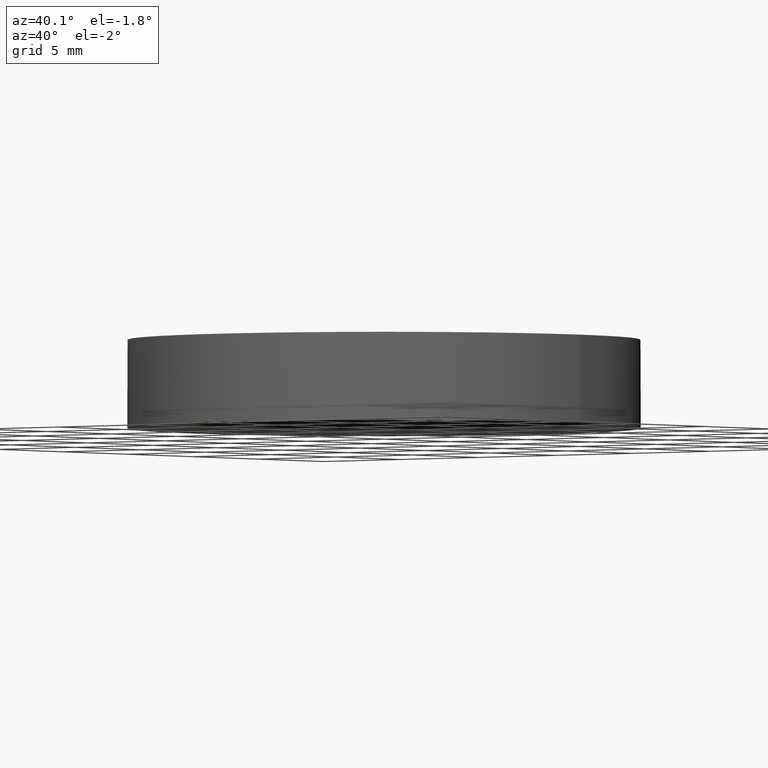
[diagram: clean part render]
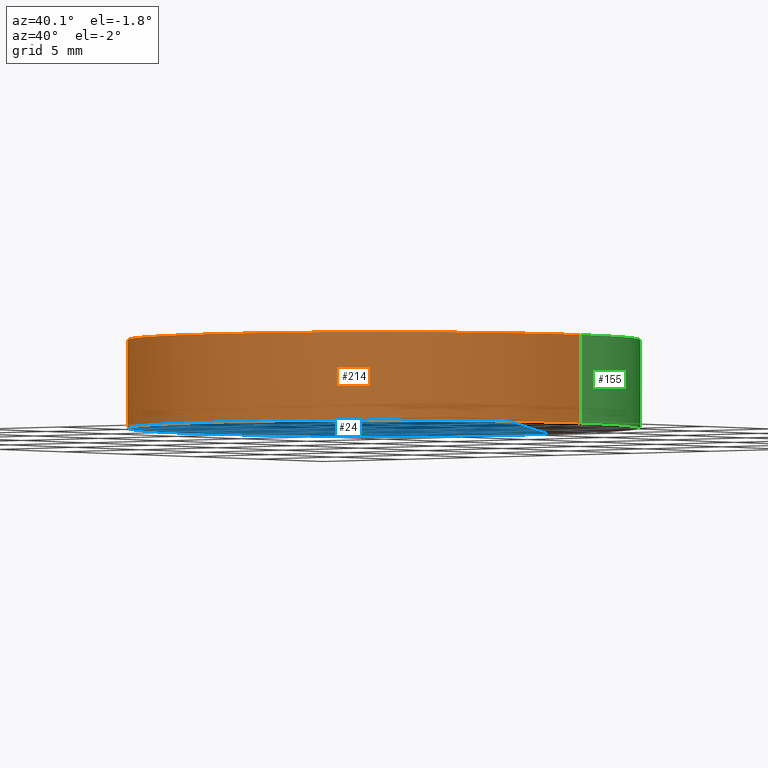
[diagram: same view with three faces highlighted in distinct colors, each labeled with its STEP entity id]
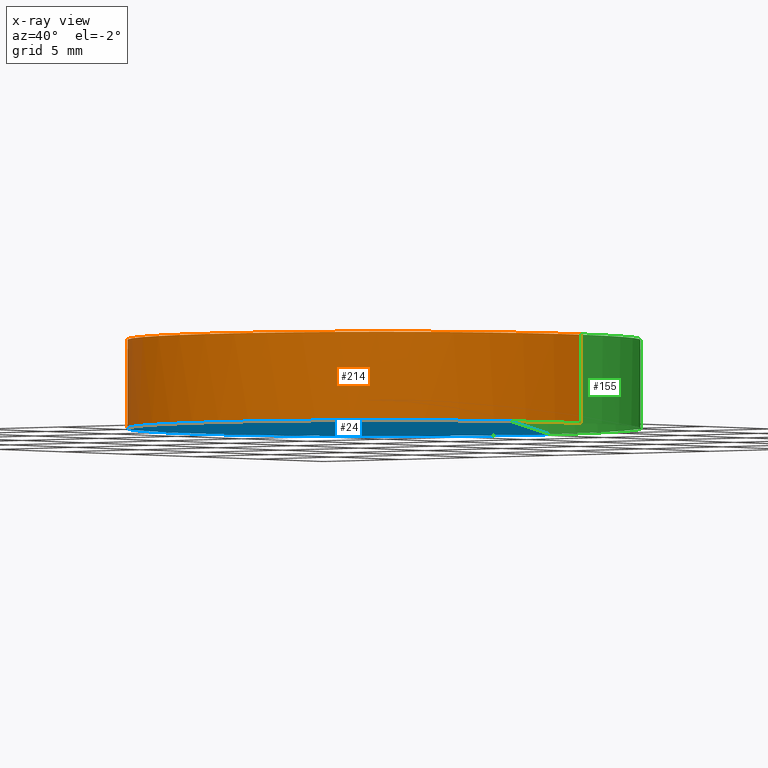
[diagram: x-ray of the same camera — body ghosted, the three highlighted faces saturated]
A machine part, auxiliary view with three faces highlighted in distinct colors.
The next image is the same camera in x-ray (body ghosted, the three faces saturated) — at least one of them is partly hidden behind the body in this view.
Their STEP definitions:

[orange] entity #214 — the highlighted cylindrical surface (partial cylindrical patch) has radius 12.7 mm, axis along (0, 0, 1).
#1 = VECTOR ( 'NONE', #193, 1000.000000000000000 ) ;
#5 = CARTESIAN_POINT ( 'NONE',  ( -12.69999999999999900, 3.997792089092478900E-015, -1.370941700092870100 ) ) ;
#8 = CARTESIAN_POINT ( 'NONE',  ( 12.69999999999999900, 2.442490654175340100E-015, -1.370941700092870100 ) ) ;
#14 = DIRECTION ( 'NONE',  ( 0.0000000000000000000, 0.0000000000000000000, 1.000000000000000000 ) ) ;
#16 = LINE ( 'NONE', #8, #1 ) ;
#20 = CIRCLE ( 'NONE', #135, 12.69999999999999900 ) ;
#26 = DIRECTION ( 'NONE',  ( 1.000000000000000000, 0.0000000000000000000, 0.0000000000000000000 ) ) ;
#33 = CARTESIAN_POINT ( 'NONE',  ( 12.69999999999999900, 2.442490654175340100E-015, -1.370941700092870100 ) ) ;
#46 = DIRECTION ( 'NONE',  ( -0.0000000000000000000, -0.0000000000000000000, -1.000000000000000000 ) ) ;
#54 = EDGE_LOOP ( 'NONE', ( #126, #218, #80, #228, #107 ) ) ;
#74 = VERTEX_POINT ( 'NONE', #5 ) ;
#77 = AXIS2_PLACEMENT_3D ( 'NONE', #216, #229, #146 ) ;
#80 = ORIENTED_EDGE ( 'NONE', *, *, #109, .T. ) ;
#84 = DIRECTION ( 'NONE',  ( 0.0000000000000000000, 0.0000000000000000000, 1.000000000000000000 ) ) ;
#96 = EDGE_CURVE ( 'NONE', #74, #130, #234, .T. ) ;
#105 = CARTESIAN_POINT ( 'NONE',  ( -12.69999999999999900, 3.997792089092478900E-015, 3.000000000000000400 ) ) ;
#107 = ORIENTED_EDGE ( 'NONE', *, *, #123, .T. ) ;
#109 = EDGE_CURVE ( 'NONE', #220, #171, #20, .T. ) ;
#113 = VERTEX_POINT ( 'NONE', #121 ) ;
#116 = CIRCLE ( 'NONE', #169, 12.69999999999999900 ) ;
#121 = CARTESIAN_POINT ( 'NONE',  ( 12.69999999999999900, 2.442490654175340100E-015, 3.000000000000000400 ) ) ;
#123 = EDGE_CURVE ( 'NONE', #113, #130, #116, .T. ) ;
#126 = ORIENTED_EDGE ( 'NONE', *, *, #96, .F. ) ;
#128 = EDGE_CURVE ( 'NONE', #171, #113, #16, .T. ) ;
#130 = VERTEX_POINT ( 'NONE', #105 ) ;
#135 = AXIS2_PLACEMENT_3D ( 'NONE', #136, #84, #26 ) ;
#136 = CARTESIAN_POINT ( 'NONE',  ( 4.996003610813200500E-016, 2.442490654175340100E-015, -1.370941700092870100 ) ) ;
#139 = CARTESIAN_POINT ( 'NONE',  ( 4.996003610813200500E-016, 2.442490654175340100E-015, 3.000000000000000400 ) ) ;
#142 = CYLINDRICAL_SURFACE ( 'NONE', #77, 12.69999999999999900 ) ;
#146 = DIRECTION ( 'NONE',  ( 1.000000000000000000, 0.0000000000000000000, 0.0000000000000000000 ) ) ;
#147 = EDGE_CURVE ( 'NONE', #74, #220, #149, .T. ) ;
#149 = CIRCLE ( 'NONE', #150, 12.69999999999999900 ) ;
#150 = AXIS2_PLACEMENT_3D ( 'NONE', #164, #14, #163 ) ;
#154 = CARTESIAN_POINT ( 'NONE',  ( -12.69999999999999900, 3.997792089092478900E-015, -1.370941700092870100 ) ) ;
#163 = DIRECTION ( 'NONE',  ( 1.000000000000000000, 0.0000000000000000000, 0.0000000000000000000 ) ) ;
#164 = CARTESIAN_POINT ( 'NONE',  ( 4.996003610813200500E-016, 2.442490654175340100E-015, -1.370941700092870100 ) ) ;
#169 = AXIS2_PLACEMENT_3D ( 'NONE', #139, #46, #213 ) ;
#171 = VERTEX_POINT ( 'NONE', #33 ) ;
#172 = DIRECTION ( 'NONE',  ( 0.0000000000000000000, 0.0000000000000000000, 1.000000000000000000 ) ) ;
#175 = CARTESIAN_POINT ( 'NONE',  ( -1.421085471520199700E-014, -12.69999999999999900, -1.370941700092875000 ) ) ;
#193 = DIRECTION ( 'NONE',  ( 0.0000000000000000000, 0.0000000000000000000, 1.000000000000000000 ) ) ;
#213 = DIRECTION ( 'NONE',  ( 1.000000000000000000, 0.0000000000000000000, 0.0000000000000000000 ) ) ;
#214 = ADVANCED_FACE ( 'NONE', ( #233 ), #142, .T. ) ;
#216 = CARTESIAN_POINT ( 'NONE',  ( 4.996003610813200500E-016, 2.442490654175340100E-015, -1.370941700092870100 ) ) ;
#218 = ORIENTED_EDGE ( 'NONE', *, *, #147, .T. ) ;
#220 = VERTEX_POINT ( 'NONE', #175 ) ;
#223 = VECTOR ( 'NONE', #172, 1000.000000000000000 ) ;
#228 = ORIENTED_EDGE ( 'NONE', *, *, #128, .T. ) ;
#229 = DIRECTION ( 'NONE',  ( 0.0000000000000000000, 0.0000000000000000000, 1.000000000000000000 ) ) ;
#233 = FACE_OUTER_BOUND ( 'NONE', #54, .T. ) ;
#234 = LINE ( 'NONE', #154, #223 ) ;

[blue] entity #24 — the highlighted face is a freeform B-spline surface patch.
#5 = CARTESIAN_POINT ( 'NONE',  ( -12.69999999999999900, 3.997792089092478900E-015, -1.370941700092870100 ) ) ;
#13 = CIRCLE ( 'NONE', #231, 12.69999999999999900 ) ;
#14 = DIRECTION ( 'NONE',  ( 0.0000000000000000000, 0.0000000000000000000, 1.000000000000000000 ) ) ;
#18 = ORIENTED_EDGE ( 'NONE', *, *, #21, .F. ) ;
#21 = EDGE_CURVE ( 'NONE', #168, #74, #13, .T. ) ;
#24 = ADVANCED_FACE ( 'NONE', ( #167 ), #207, .F. ) ;
#25 = CARTESIAN_POINT ( 'NONE',  ( -1.421085471520200100E-014, 3.552713678800500100E-015, -59.50999999999999800 ) ) ;
#27 = CARTESIAN_POINT ( 'NONE',  ( -8.643638908625003800, -4.351775892739209600, 0.007470142450254155900 ) ) ;
#29 = EDGE_CURVE ( 'NONE', #168, #220, #202, .T. ) ;
#35 = AXIS2_PLACEMENT_3D ( 'NONE', #25, #161, #210 ) ;
#42 = CARTESIAN_POINT ( 'NONE',  ( -8.372831571571831300, -12.85000064494567900, -1.857226863961664000 ) ) ;
#43 = CARTESIAN_POINT ( 'NONE',  ( -8.643638908625003800, 4.351775892739211400, 0.007470142450260661100 ) ) ;
#44 = CARTESIAN_POINT ( 'NONE',  ( -2.428612866367529900E-014, -12.85000064494567900, -1.403910960856293900 ) ) ;
#57 = DIRECTION ( 'NONE',  ( 0.0000000000000000000, 0.0000000000000000000, 1.000000000000000000 ) ) ;
#59 = CARTESIAN_POINT ( 'NONE',  ( -12.47363340973639200, 12.85000064494568200, -2.758559022837086900 ) ) ;
#61 = CARTESIAN_POINT ( 'NONE',  ( -4.334487914191719900, 4.351775892739212300, 0.4754479041532194100 ) ) ;
#64 = CARTESIAN_POINT ( 'NONE',  ( -12.47363340973639000, -12.85000064494567900, -2.758559022837094000 ) ) ;
#74 = VERTEX_POINT ( 'NONE', #5 ) ;
#75 = CARTESIAN_POINT ( 'NONE',  ( -8.372831571571831300, 12.85000064494568200, -1.857226863961656700 ) ) ;
#81 = CARTESIAN_POINT ( 'NONE',  ( -12.87707535386163800, -4.351775892739208700, -0.9230143240595714000 ) ) ;
#97 = DIRECTION ( 'NONE',  ( 1.000000000000000000, 0.0000000000000000000, 0.0000000000000000000 ) ) ;
#102 = CARTESIAN_POINT ( 'NONE',  ( -12.87707535386163800, 4.351775892739210500, -0.9230143240595649600 ) ) ;
#111 = CARTESIAN_POINT ( 'NONE',  ( -1.421085471520199700E-014, 12.70000000000000600, -1.370941700092875000 ) ) ;
#118 = CARTESIAN_POINT ( 'NONE',  ( -4.198687339695238700, 12.85000064494568200, -1.403910960856287200 ) ) ;
#122 = CARTESIAN_POINT ( 'NONE',  ( -2.428612866367529600E-014, 4.351775892739211400, 0.4754479041532200800 ) ) ;
#137 = CARTESIAN_POINT ( 'NONE',  ( -4.334487914191719000, -4.351775892739208700, 0.4754479041532131400 ) ) ;
#147 = EDGE_CURVE ( 'NONE', #74, #220, #149, .T. ) ;
#149 = CIRCLE ( 'NONE', #150, 12.69999999999999900 ) ;
#150 = AXIS2_PLACEMENT_3D ( 'NONE', #164, #14, #163 ) ;
#151 = CARTESIAN_POINT ( 'NONE',  ( 4.996003610813200500E-016, 2.442490654175340100E-015, -1.370941700092870100 ) ) ;
#158 = CARTESIAN_POINT ( 'NONE',  ( -4.198687339695237800, -12.85000064494567900, -1.403910960856294500 ) ) ;
#160 = ORIENTED_EDGE ( 'NONE', *, *, #147, .F. ) ;
#161 = DIRECTION ( 'NONE',  ( 1.000000000000000000, 0.0000000000000000000, 0.0000000000000000000 ) ) ;
#163 = DIRECTION ( 'NONE',  ( 1.000000000000000000, 0.0000000000000000000, 0.0000000000000000000 ) ) ;
#164 = CARTESIAN_POINT ( 'NONE',  ( 4.996003610813200500E-016, 2.442490654175340100E-015, -1.370941700092870100 ) ) ;
#167 = FACE_OUTER_BOUND ( 'NONE', #212, .T. ) ;
#168 = VERTEX_POINT ( 'NONE', #111 ) ;
#175 = CARTESIAN_POINT ( 'NONE',  ( -1.421085471520199700E-014, -12.69999999999999900, -1.370941700092875000 ) ) ;
#185 = CARTESIAN_POINT ( 'NONE',  ( -2.428612866367529900E-014, 12.85000064494568200, -1.403910960856286500 ) ) ;
#187 = ORIENTED_EDGE ( 'NONE', *, *, #29, .T. ) ;
#191 = CARTESIAN_POINT ( 'NONE',  ( -2.428612866367529600E-014, -4.351775892739207800, 0.4754479041532137500 ) ) ;
#202 = CIRCLE ( 'NONE', #35, 59.50999999999999800 ) ;
#207 =( BOUNDED_SURFACE ( )  B_SPLINE_SURFACE ( 3, 3, ( 
 ( #59, #75, #118, #185 ),
 ( #102, #43, #61, #122 ),
 ( #81, #27, #137, #191 ),
 ( #64, #42, #158, #44 ) ),
 .UNSPECIFIED., .F., .F., .F. ) 
 B_SPLINE_SURFACE_WITH_KNOTS ( ( 4, 4 ),
 ( 4, 4 ),
 ( 0.0000000000000000000, 1.000000000000000000 ),
 ( 0.0000000000000000000, 1.000000000000000000 ),
 .UNSPECIFIED. ) 
 GEOMETRIC_REPRESENTATION_ITEM ( )  RATIONAL_B_SPLINE_SURFACE ( (
 ( 1.000000000000000000, 0.9961030506548106400, 0.9961030506548106400, 1.000000000000000000),
 ( 0.9842725484696544000, 0.9804368882064077300, 0.9804368882064077300, 0.9842725484696544000),
 ( 0.9842725484696544000, 0.9804368882064077300, 0.9804368882064077300, 0.9842725484696544000),
 ( 1.000000000000000000, 0.9961030506548106400, 0.9961030506548106400, 1.000000000000000000) ) ) 
 REPRESENTATION_ITEM ( '' )  SURFACE ( )  );
#210 = DIRECTION ( 'NONE',  ( 0.0000000000000000000, 1.000000000000000000, -2.332009377888499000E-016 ) ) ;
#212 = EDGE_LOOP ( 'NONE', ( #18, #187, #160 ) ) ;
#220 = VERTEX_POINT ( 'NONE', #175 ) ;
#231 = AXIS2_PLACEMENT_3D ( 'NONE', #151, #57, #97 ) ;

[green] entity #155 — the highlighted cylindrical surface (partial cylindrical patch) has radius 12.7 mm, axis along (0, 0, 1).
#1 = VECTOR ( 'NONE', #193, 1000.000000000000000 ) ;
#5 = CARTESIAN_POINT ( 'NONE',  ( -12.69999999999999900, 3.997792089092478900E-015, -1.370941700092870100 ) ) ;
#8 = CARTESIAN_POINT ( 'NONE',  ( 12.69999999999999900, 2.442490654175340100E-015, -1.370941700092870100 ) ) ;
#12 = EDGE_CURVE ( 'NONE', #130, #113, #203, .T. ) ;
#13 = CIRCLE ( 'NONE', #231, 12.69999999999999900 ) ;
#16 = LINE ( 'NONE', #8, #1 ) ;
#21 = EDGE_CURVE ( 'NONE', #168, #74, #13, .T. ) ;
#33 = CARTESIAN_POINT ( 'NONE',  ( 12.69999999999999900, 2.442490654175340100E-015, -1.370941700092870100 ) ) ;
#34 = DIRECTION ( 'NONE',  ( 0.0000000000000000000, 0.0000000000000000000, 1.000000000000000000 ) ) ;
#37 = AXIS2_PLACEMENT_3D ( 'NONE', #188, #79, #205 ) ;
#48 = ORIENTED_EDGE ( 'NONE', *, *, #132, .T. ) ;
#49 = CARTESIAN_POINT ( 'NONE',  ( 4.996003610813200500E-016, 2.442490654175340100E-015, -1.370941700092870100 ) ) ;
#57 = DIRECTION ( 'NONE',  ( 0.0000000000000000000, 0.0000000000000000000, 1.000000000000000000 ) ) ;
#60 = CIRCLE ( 'NONE', #63, 12.69999999999999900 ) ;
#63 = AXIS2_PLACEMENT_3D ( 'NONE', #49, #87, #162 ) ;
#66 = ORIENTED_EDGE ( 'NONE', *, *, #96, .T. ) ;
#67 = DIRECTION ( 'NONE',  ( 1.000000000000000000, 0.0000000000000000000, 0.0000000000000000000 ) ) ;
#74 = VERTEX_POINT ( 'NONE', #5 ) ;
#79 = DIRECTION ( 'NONE',  ( -0.0000000000000000000, -0.0000000000000000000, -1.000000000000000000 ) ) ;
#87 = DIRECTION ( 'NONE',  ( 0.0000000000000000000, 0.0000000000000000000, 1.000000000000000000 ) ) ;
#90 = CYLINDRICAL_SURFACE ( 'NONE', #183, 12.69999999999999900 ) ;
#96 = EDGE_CURVE ( 'NONE', #74, #130, #234, .T. ) ;
#97 = DIRECTION ( 'NONE',  ( 1.000000000000000000, 0.0000000000000000000, 0.0000000000000000000 ) ) ;
#105 = CARTESIAN_POINT ( 'NONE',  ( -12.69999999999999900, 3.997792089092478900E-015, 3.000000000000000400 ) ) ;
#111 = CARTESIAN_POINT ( 'NONE',  ( -1.421085471520199700E-014, 12.70000000000000600, -1.370941700092875000 ) ) ;
#113 = VERTEX_POINT ( 'NONE', #121 ) ;
#119 = FACE_OUTER_BOUND ( 'NONE', #153, .T. ) ;
#121 = CARTESIAN_POINT ( 'NONE',  ( 12.69999999999999900, 2.442490654175340100E-015, 3.000000000000000400 ) ) ;
#128 = EDGE_CURVE ( 'NONE', #171, #113, #16, .T. ) ;
#130 = VERTEX_POINT ( 'NONE', #105 ) ;
#132 = EDGE_CURVE ( 'NONE', #171, #168, #60, .T. ) ;
#151 = CARTESIAN_POINT ( 'NONE',  ( 4.996003610813200500E-016, 2.442490654175340100E-015, -1.370941700092870100 ) ) ;
#153 = EDGE_LOOP ( 'NONE', ( #48, #178, #66, #166, #206 ) ) ;
#154 = CARTESIAN_POINT ( 'NONE',  ( -12.69999999999999900, 3.997792089092478900E-015, -1.370941700092870100 ) ) ;
#155 = ADVANCED_FACE ( 'NONE', ( #119 ), #90, .T. ) ;
#162 = DIRECTION ( 'NONE',  ( 1.000000000000000000, 0.0000000000000000000, 0.0000000000000000000 ) ) ;
#166 = ORIENTED_EDGE ( 'NONE', *, *, #12, .T. ) ;
#168 = VERTEX_POINT ( 'NONE', #111 ) ;
#171 = VERTEX_POINT ( 'NONE', #33 ) ;
#172 = DIRECTION ( 'NONE',  ( 0.0000000000000000000, 0.0000000000000000000, 1.000000000000000000 ) ) ;
#176 = CARTESIAN_POINT ( 'NONE',  ( 4.996003610813200500E-016, 2.442490654175340100E-015, -1.370941700092870100 ) ) ;
#178 = ORIENTED_EDGE ( 'NONE', *, *, #21, .T. ) ;
#183 = AXIS2_PLACEMENT_3D ( 'NONE', #176, #34, #67 ) ;
#188 = CARTESIAN_POINT ( 'NONE',  ( 4.996003610813200500E-016, 2.442490654175340100E-015, 3.000000000000000400 ) ) ;
#193 = DIRECTION ( 'NONE',  ( 0.0000000000000000000, 0.0000000000000000000, 1.000000000000000000 ) ) ;
#203 = CIRCLE ( 'NONE', #37, 12.69999999999999900 ) ;
#205 = DIRECTION ( 'NONE',  ( 1.000000000000000000, 0.0000000000000000000, 0.0000000000000000000 ) ) ;
#206 = ORIENTED_EDGE ( 'NONE', *, *, #128, .F. ) ;
#223 = VECTOR ( 'NONE', #172, 1000.000000000000000 ) ;
#231 = AXIS2_PLACEMENT_3D ( 'NONE', #151, #57, #97 ) ;
#234 = LINE ( 'NONE', #154, #223 ) ;